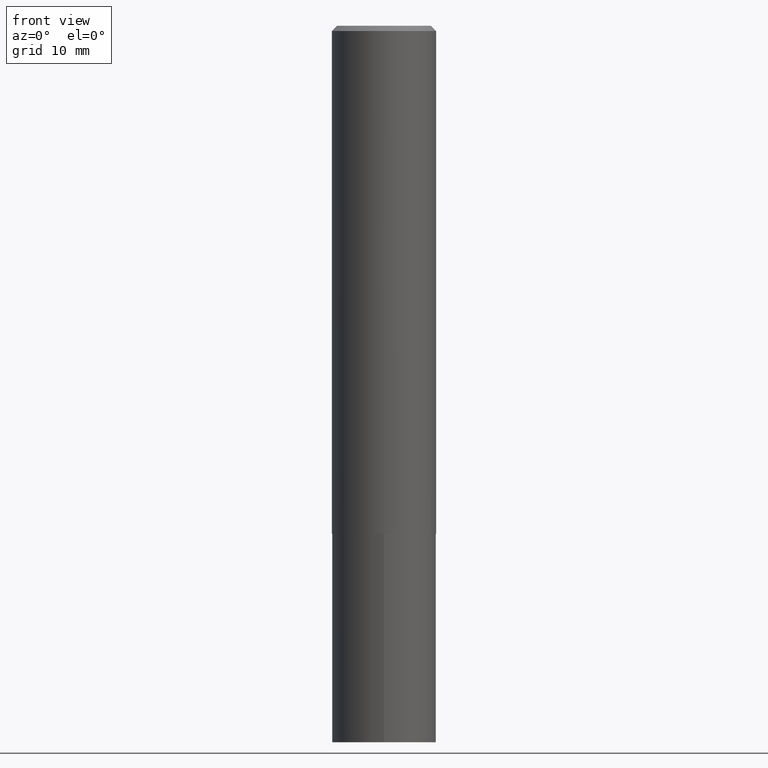
[diagram: clean part render]
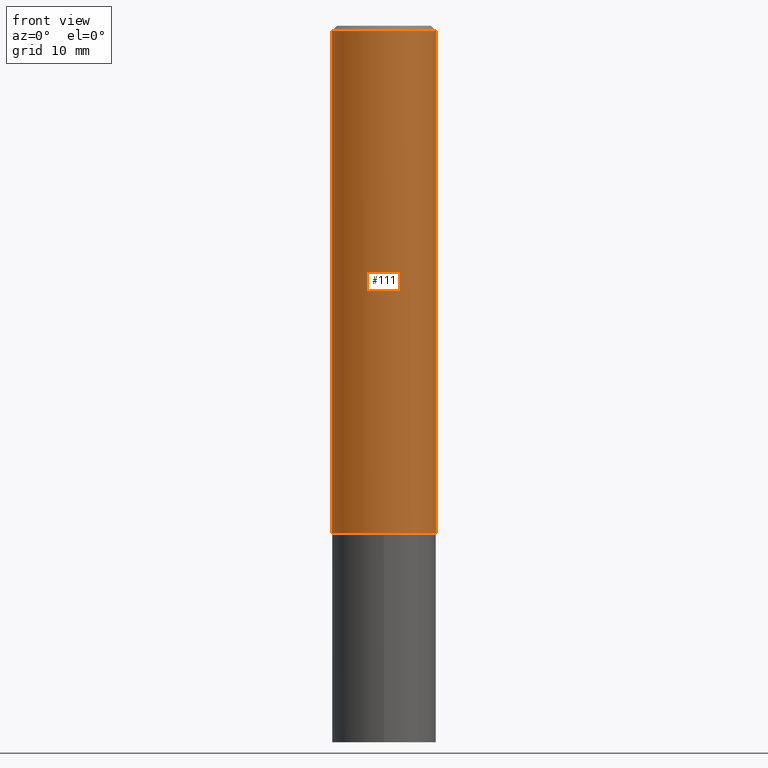
[diagram: same view with one face highlighted and labeled with its STEP entity id]
A machine part, front view. The second image highlights one B-rep face of the part: STEP entity #111.
In plain terms, the highlighted cylindrical surface (partial cylindrical patch) has radius 7.9997 mm, axis along (-0, 0, 1).
Its self-contained STEP definition (entity closure, byte-faithful):
#32 = AXIS2_PLACEMENT_3D ( 'NONE', #142, #60, #164 ) ;
#43 = VECTOR ( 'NONE', #201, 39.37007874015748143 ) ;
#60 = DIRECTION ( 'NONE',  ( -2.445468806185136597E-29, 3.491481338843145583E-15, 1.000000000000000000 ) ) ;
#62 = CIRCLE ( 'NONE', #89, 0.3149500000000000632 ) ;
#70 = CARTESIAN_POINT ( 'NONE',  ( 0.3149500000000000632, -2.308392887176138972E-15, -0.03125000000000018041 ) ) ;
#89 = AXIS2_PLACEMENT_3D ( 'NONE', #181, #326, #146 ) ;
#111 = ADVANCED_FACE ( 'NONE', ( #230 ), #344, .T. ) ;
#116 = EDGE_CURVE ( 'NONE', #331, #281, #138, .T. ) ;
#123 = LINE ( 'NONE', #352, #43 ) ;
#131 = ORIENTED_EDGE ( 'NONE', *, *, #235, .T. ) ;
#135 = CARTESIAN_POINT ( 'NONE',  ( 0.000000000000000000, 0.000000000000000000, 0.000000000000000000 ) ) ;
#138 = CIRCLE ( 'NONE', #32, 0.3149500000000003963 ) ;
#142 = CARTESIAN_POINT ( 'NONE',  ( 7.508078328749607056E-29, -1.071954600651622650E-14, -3.070200000000000706 ) ) ;
#146 = DIRECTION ( 'NONE',  ( 1.000000000000000000, -6.982962677686266711E-15, 0.000000000000000000 ) ) ;
#154 = EDGE_LOOP ( 'NONE', ( #278, #241, #131, #212 ) ) ;
#164 = DIRECTION ( 'NONE',  ( 1.000000000000000000, -6.982962677686267499E-15, 0.000000000000000000 ) ) ;
#178 = DIRECTION ( 'NONE',  ( -2.445468806185136877E-29, 3.491481338843145188E-15, 1.000000000000000000 ) ) ;
#181 = CARTESIAN_POINT ( 'NONE',  ( 7.642090019328596531E-31, -1.091087918388489404E-16, -0.03125000000000018041 ) ) ;
#185 = EDGE_CURVE ( 'NONE', #244, #187, #62, .T. ) ;
#187 = VERTEX_POINT ( 'NONE', #70 ) ;
#201 = DIRECTION ( 'NONE',  ( -2.445468806185136877E-29, 3.491481338843145188E-15, 1.000000000000000000 ) ) ;
#205 = CARTESIAN_POINT ( 'NONE',  ( -0.3149500000000000632, -3.176473052901099843E-15, -0.03125000000000018041 ) ) ;
#212 = ORIENTED_EDGE ( 'NONE', *, *, #185, .F. ) ;
#216 = VECTOR ( 'NONE', #178, 39.37007874015748143 ) ;
#230 = FACE_OUTER_BOUND ( 'NONE', #154, .T. ) ;
#235 = EDGE_CURVE ( 'NONE', #281, #187, #237, .T. ) ;
#236 = CARTESIAN_POINT ( 'NONE',  ( 0.3149500000000003963, -1.291883010185351952E-14, -3.070200000000000706 ) ) ;
#237 = LINE ( 'NONE', #270, #216 ) ;
#241 = ORIENTED_EDGE ( 'NONE', *, *, #116, .T. ) ;
#244 = VERTEX_POINT ( 'NONE', #205 ) ;
#254 = DIRECTION ( 'NONE',  ( 1.000000000000000000, -6.982962677686267499E-15, 4.876176775795936353E-29 ) ) ;
#260 = DIRECTION ( 'NONE',  ( -2.445468806185136597E-29, 3.491481338843145583E-15, 1.000000000000000000 ) ) ;
#270 = CARTESIAN_POINT ( 'NONE',  ( 0.3149500000000002853, -2.199284095337291843E-15, 1.535751875536931531E-29 ) ) ;
#278 = ORIENTED_EDGE ( 'NONE', *, *, #297, .F. ) ;
#281 = VERTEX_POINT ( 'NONE', #236 ) ;
#296 = CARTESIAN_POINT ( 'NONE',  ( -0.3149500000000003963, -8.481691660239788936E-15, -3.070200000000000706 ) ) ;
#297 = EDGE_CURVE ( 'NONE', #331, #244, #123, .T. ) ;
#318 = AXIS2_PLACEMENT_3D ( 'NONE', #135, #260, #254 ) ;
#326 = DIRECTION ( 'NONE',  ( -2.445468806185136597E-29, 3.491481338843145583E-15, 1.000000000000000000 ) ) ;
#331 = VERTEX_POINT ( 'NONE', #296 ) ;
#344 = CYLINDRICAL_SURFACE ( 'NONE', #318, 0.3149500000000002853 ) ;
#352 = CARTESIAN_POINT ( 'NONE',  ( -0.3149500000000002853, 2.237854346276437562E-15, -1.549218606675783797E-29 ) ) ;